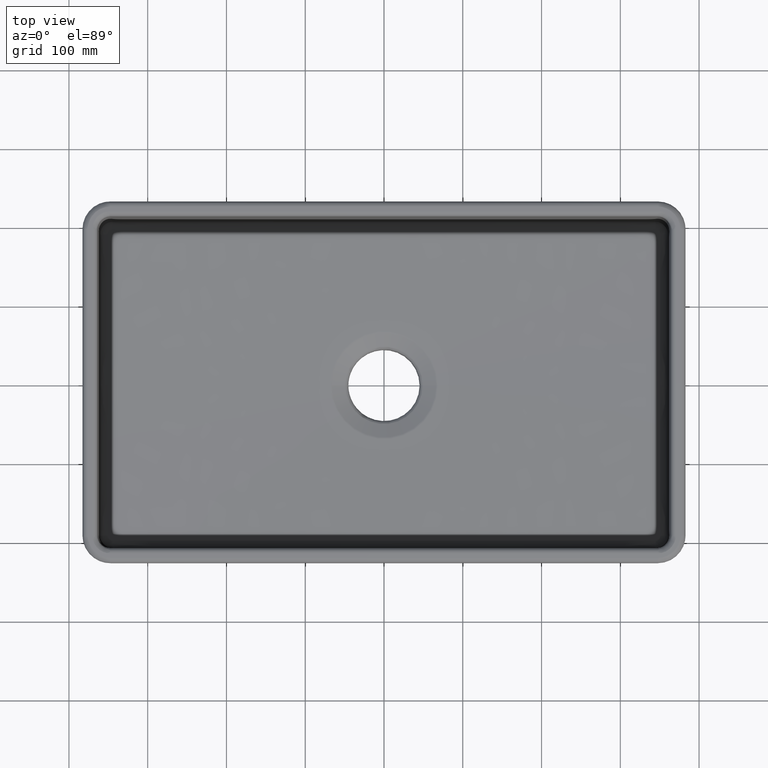
[diagram: clean part render]
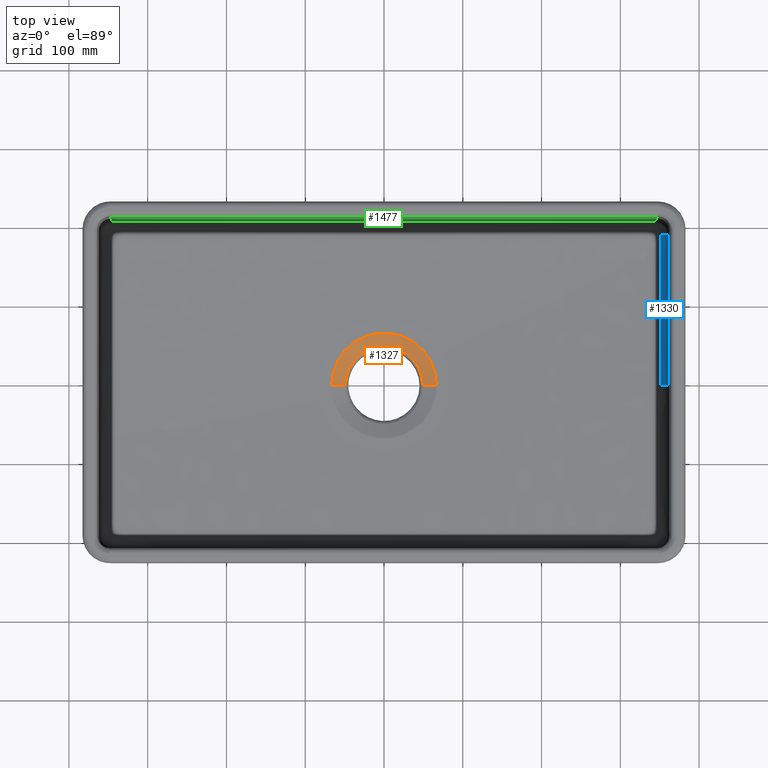
[diagram: same view with three faces highlighted in distinct colors, each labeled with its STEP entity id]
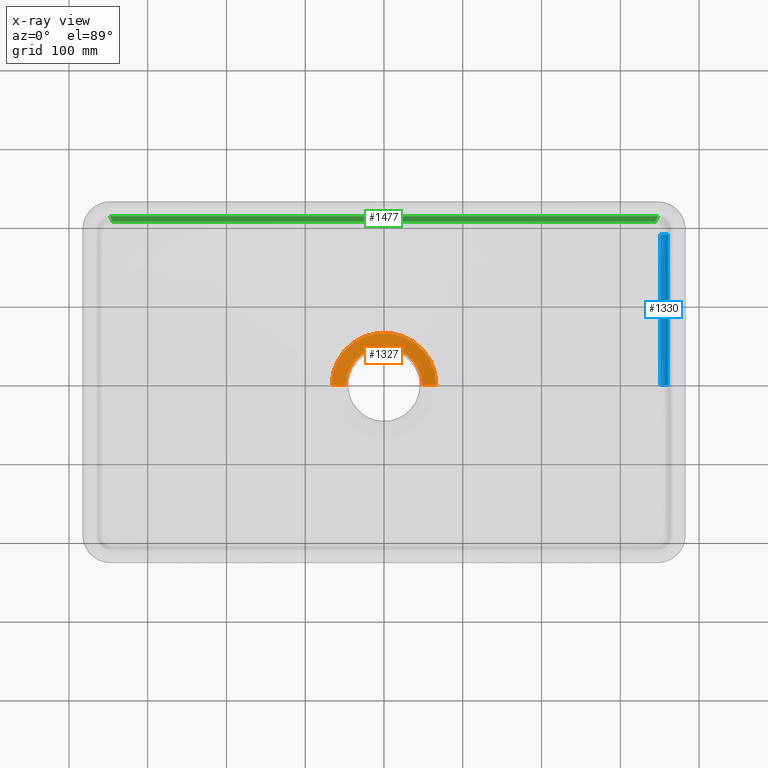
[diagram: x-ray of the same camera — body ghosted, the three highlighted faces saturated]
A machine part, top view with three faces highlighted in distinct colors.
The next image is the same camera in x-ray (body ghosted, the three faces saturated) — at least one of them is partly hidden behind the body in this view.
Their STEP definitions:

[orange] entity #1327 — the highlighted face is a freeform B-spline surface patch.
#114=(
BOUNDED_SURFACE()
B_SPLINE_SURFACE(1,3,((#9401,#9402,#9403,#9404,#9405,#9406,#9407),(#9408,
#9409,#9410,#9411,#9412,#9413,#9414)),.UNSPECIFIED.,.F.,.T.,.F.)
B_SPLINE_SURFACE_WITH_KNOTS((2,2),(1,3,3,3,1),(0.,1.),(-0.5,0.,0.5,1.,1.5),
 .UNSPECIFIED.)
GEOMETRIC_REPRESENTATION_ITEM()
RATIONAL_B_SPLINE_SURFACE(((1.,0.333333333333333,0.333333333333333,1.,0.333333333333333,
0.333333333333333,1.),(1.,0.333333333333333,0.333333333333333,1.,0.333333333333333,
0.333333333333333,1.)))
REPRESENTATION_ITEM('')
SURFACE()
);
#395=(
BOUNDED_CURVE()
B_SPLINE_CURVE(1,(#9399,#9400),.UNSPECIFIED.,.F.,.F.)
B_SPLINE_CURVE_WITH_KNOTS((2,2),(0.,1.),.UNSPECIFIED.)
CURVE()
GEOMETRIC_REPRESENTATION_ITEM()
RATIONAL_B_SPLINE_CURVE((0.999999999999999,0.999999999999999))
REPRESENTATION_ITEM('')
);
#1079=CIRCLE('',#5839,49.1144117555744);
#1080=CIRCLE('',#5841,66.3848940076697);
#1327=ADVANCED_FACE('',(#1699),#114,.F.);
#1699=FACE_OUTER_BOUND('',#2045,.T.);
#2045=EDGE_LOOP('',(#2620,#2621,#2622,#2623));
#2620=ORIENTED_EDGE('',*,*,#4971,.F.);
#2621=ORIENTED_EDGE('',*,*,#4972,.T.);
#2622=ORIENTED_EDGE('',*,*,#4973,.F.);
#2623=ORIENTED_EDGE('',*,*,#4969,.T.);
#4370=VERTEX_POINT('',#9387);
#4371=VERTEX_POINT('',#9388);
#4372=VERTEX_POINT('',#9396);
#4373=VERTEX_POINT('',#9398);
#4969=EDGE_CURVE('',#4370,#4371,#1079,.T.);
#4971=EDGE_CURVE('',#4372,#4371,#5704,.T.);
#4972=EDGE_CURVE('',#4372,#4373,#1080,.T.);
#4973=EDGE_CURVE('',#4370,#4373,#395,.T.);
#5704=LINE('',#9395,#5769);
#5769=VECTOR('',#6238,1.);
#5839=AXIS2_PLACEMENT_3D('',#9389,#6234,#6235);
#5841=AXIS2_PLACEMENT_3D('',#9397,#6239,#6240);
#6234=DIRECTION('',(-1.52260824597301E-031,3.49010973577968E-016,-1.));
#6235=DIRECTION('',(0.,1.,3.53200499399225E-016));
#6238=DIRECTION('',(-0.933580426497201,7.50914907258306E-016,-0.358367949545301));
#6239=DIRECTION('',(1.52260824597301E-031,-3.49010973577968E-016,1.));
#6240=DIRECTION('',(0.,1.,3.49010990959669E-016));
#9387=CARTESIAN_POINT('',(-49.1144117555745,0.,-6.62955299999997));
#9388=CARTESIAN_POINT('',(49.1144117555744,-2.47829537048856E-014,-6.62955299999997));
#9389=CARTESIAN_POINT('',(0.,0.,-6.629553));
#9395=CARTESIAN_POINT('',(62.5856368540658,1.39475254349894E-014,-1.45843417682265));
#9396=CARTESIAN_POINT('',(66.3848940076696,3.03858167864314E-061,-3.59957031317035E-005));
#9397=CARTESIAN_POINT('',(0.,0.,-3.59957031316905E-005));
#9398=CARTESIAN_POINT('',(-66.3848940076696,-3.03858167864314E-061,-3.59957031317035E-005));
#9399=CARTESIAN_POINT('',(-49.1144117555745,-1.88394069126818E-014,-6.62955299999997));
#9400=CARTESIAN_POINT('',(-66.3848940076696,-4.8069994542083E-014,-3.59957031698805E-005));
#9401=CARTESIAN_POINT('',(79.9259994148784,0.,5.19790736474793));
#9402=CARTESIAN_POINT('',(79.9259994148784,159.851998829757,5.19790736474796));
#9403=CARTESIAN_POINT('',(-79.9259994148784,159.851998829757,5.19790736474796));
#9404=CARTESIAN_POINT('',(-79.9259994148784,0.,5.19790736474793));
#9405=CARTESIAN_POINT('',(-79.9259994148784,-159.851998829757,5.19790736474796));
#9406=CARTESIAN_POINT('',(79.9259994148783,-159.851998829757,5.19790736474796));
#9407=CARTESIAN_POINT('',(79.9259994148784,0.,5.19790736474793));
#9408=CARTESIAN_POINT('',(45.2452742932533,2.78950508699788E-014,-8.11477571839323));
#9409=CARTESIAN_POINT('',(45.2452742932533,90.4905485865067,-8.11477571839321));
#9410=CARTESIAN_POINT('',(-45.2452742932533,90.4905485865068,-8.11477571839321));
#9411=CARTESIAN_POINT('',(-45.2452742932534,2.78950508699788E-014,-8.11477571839323));
#9412=CARTESIAN_POINT('',(-45.2452742932533,-90.4905485865068,-8.11477571839321));
#9413=CARTESIAN_POINT('',(45.2452742932533,-90.4905485865068,-8.11477571839321));
#9414=CARTESIAN_POINT('',(45.2452742932533,2.78950508699788E-014,-8.11477571839323));

[blue] entity #1330 — the highlighted face is a freeform B-spline surface patch.
#116=(
BOUNDED_SURFACE()
B_SPLINE_SURFACE(3,2,((#9493,#9494,#9495),(#9496,#9497,#9498),(#9499,#9500,
#9501),(#9502,#9503,#9504)),.UNSPECIFIED.,.F.,.F.,.F.)
B_SPLINE_SURFACE_WITH_KNOTS((4,4),(3,3),(0.,1.),(0.,1.),.UNSPECIFIED.)
GEOMETRIC_REPRESENTATION_ITEM()
RATIONAL_B_SPLINE_SURFACE(((1.,0.723904266413247,1.),(1.,0.723904266413247,
1.),(1.,0.725375392977469,1.),(1.,0.725375392977469,1.)))
REPRESENTATION_ITEM('')
SURFACE()
);
#545=B_SPLINE_CURVE_WITH_KNOTS('',3,(#9437,#9438,#9439,#9440),
 .UNSPECIFIED.,.F.,.F.,(4,4),(0.,1.),.UNSPECIFIED.);
#550=B_SPLINE_CURVE_WITH_KNOTS('',3,(#9487,#9488,#9489,#9490),
 .UNSPECIFIED.,.F.,.F.,(4,4),(0.,1.),.UNSPECIFIED.);
#1084=CIRCLE('',#5846,10.0502512562814);
#1085=CIRCLE('',#5847,10.0502512562814);
#1330=ADVANCED_FACE('',(#1701),#116,.T.);
#1701=FACE_OUTER_BOUND('',#2049,.T.);
#2049=EDGE_LOOP('',(#2636,#2637,#2638,#2639));
#2636=ORIENTED_EDGE('',*,*,#4984,.F.);
#2637=ORIENTED_EDGE('',*,*,#4985,.F.);
#2638=ORIENTED_EDGE('',*,*,#4986,.T.);
#2639=ORIENTED_EDGE('',*,*,#4979,.F.);
#4377=VERTEX_POINT('',#9436);
#4378=VERTEX_POINT('',#9441);
#4382=VERTEX_POINT('',#9486);
#4383=VERTEX_POINT('',#9491);
#4979=EDGE_CURVE('',#4377,#4378,#545,.T.);
#4984=EDGE_CURVE('',#4382,#4377,#1084,.T.);
#4985=EDGE_CURVE('',#4383,#4382,#550,.T.);
#4986=EDGE_CURVE('',#4383,#4378,#1085,.T.);
#5846=AXIS2_PLACEMENT_3D('',#9485,#6249,#6250);
#5847=AXIS2_PLACEMENT_3D('',#9492,#6251,#6252);
#6249=DIRECTION('',(0.,1.,0.));
#6250=DIRECTION('',(0.,0.,-1.));
#6251=DIRECTION('',(0.000292094724097546,0.999859932554186,0.0167340955360933));
#6252=DIRECTION('',(0.,0.0167340962499641,-0.999859975207877));
#9436=CARTESIAN_POINT('',(350.697054243399,6.23862016658794E-014,10.3161714649818));
#9437=CARTESIAN_POINT('',(350.697054243399,9.57759997405754E-014,10.3161714649818));
#9438=CARTESIAN_POINT('',(350.697054243399,63.7856072246808,10.3161714649818));
#9439=CARTESIAN_POINT('',(350.688867604402,127.568278502609,10.9535075145952));
#9440=CARTESIAN_POINT('',(350.68393670735,191.348971973442,12.0202468780342));
#9441=CARTESIAN_POINT('',(350.68393670735,191.348971973443,12.0202468780342));
#9485=CARTESIAN_POINT('',(350.34627570878,-6.25218007631856E-014,20.3602993382238));
#9486=CARTESIAN_POINT('',(360.394996263115,0.,20.1848982685024));
#9487=CARTESIAN_POINT('',(360.424741014263,191.180958981598,21.8889739204751));
#9488=CARTESIAN_POINT('',(360.406124090149,127.453972654398,20.8224110523115));
#9489=CARTESIAN_POINT('',(360.394996263115,63.7269863271992,20.1848982685024));
#9490=CARTESIAN_POINT('',(360.394996263115,9.62998438875617E-014,20.1848982685024));
#9491=CARTESIAN_POINT('',(360.424741014263,191.180958981598,21.888973920475));
#9492=CARTESIAN_POINT('',(350.376020459927,191.180958981598,22.0643749901966));
#9493=CARTESIAN_POINT('',(350.68393670735,191.348971973443,12.0202468780342));
#9494=CARTESIAN_POINT('',(360.25760244247,191.341265284196,12.313611555427));
#9495=CARTESIAN_POINT('',(360.424741014263,191.180958981597,21.8889739204751));
#9496=CARTESIAN_POINT('',(350.688866754037,127.579178385765,10.9536898161467));
#9497=CARTESIAN_POINT('',(360.23936601652,127.573052274405,11.268847818242));
#9498=CARTESIAN_POINT('',(360.40612399069,127.453632243738,20.8224053542756));
#9499=CARTESIAN_POINT('',(350.697054254012,63.7916791748301,10.3161714653525));
#9500=CARTESIAN_POINT('',(360.228547357902,63.7884292153832,10.6490468800324));
#9501=CARTESIAN_POINT('',(360.394996263122,63.7272419934137,20.1848982688957));
#9502=CARTESIAN_POINT('',(350.697054243399,-6.15075227691769E-014,10.3161714649818));
#9503=CARTESIAN_POINT('',(360.228547357902,-6.1516992864506E-014,10.649046875334));
#9504=CARTESIAN_POINT('',(360.394996263115,-6.16979307795856E-014,20.1848982685024));

[green] entity #1477 — the highlighted planar face has unit normal (0, 0.9998, -0.0175).
#729=B_SPLINE_CURVE_WITH_KNOTS('',3,(#14875,#14876,#14877,#14878,#14879,
#14880,#14881,#14882,#14883,#14884),.UNSPECIFIED.,.F.,.F.,(4,2,2,2,4),(0.,
0.25,0.5,0.75,1.),.UNSPECIFIED.);
#1477=ADVANCED_FACE('',(#1844),#1666,.F.);
#1666=PLANE('',#5983);
#1844=FACE_OUTER_BOUND('',#2200,.T.);
#2200=EDGE_LOOP('',(#3336,#3337,#3338,#3339));
#3336=ORIENTED_EDGE('',*,*,#5293,.T.);
#3337=ORIENTED_EDGE('',*,*,#5294,.T.);
#3338=ORIENTED_EDGE('',*,*,#5291,.T.);
#3339=ORIENTED_EDGE('',*,*,#5288,.T.);
#4543=VERTEX_POINT('',#14830);
#4544=VERTEX_POINT('',#14885);
#4545=VERTEX_POINT('',#14962);
#4546=VERTEX_POINT('',#14966);
#5288=EDGE_CURVE('',#4544,#4543,#729,.T.);
#5291=EDGE_CURVE('',#4545,#4544,#5720,.T.);
#5293=EDGE_CURVE('',#4543,#4546,#5721,.T.);
#5294=EDGE_CURVE('',#4546,#4545,#5722,.T.);
#5720=LINE('',#14961,#5785);
#5721=LINE('',#14965,#5786);
#5722=LINE('',#14967,#5787);
#5785=VECTOR('',#6534,1.);
#5786=VECTOR('',#6539,1.);
#5787=VECTOR('',#6540,1.);
#5983=AXIS2_PLACEMENT_3D('',#14968,#6541,#6542);
#6534=DIRECTION('',(0.0174497491606827,-0.0174497491606827,-0.999695459881888));
#6539=DIRECTION('',(0.0174497491606827,0.0174497491606827,0.999695459881888));
#6540=DIRECTION('',(-1.,0.,0.));
#6541=DIRECTION('',(0.,0.999847695156391,-0.0174524064372835));
#6542=DIRECTION('',(0.,-0.0174524064372835,-0.999847695156391));
#14830=CARTESIAN_POINT('',(344.345372473083,207.257496214291,21.8078711431788));
#14875=CARTESIAN_POINT('',(-344.345372473083,207.257496214291,21.8078711431788));
#14876=CARTESIAN_POINT('',(-286.965728801055,207.227134540082,20.0684519926834));
#14877=CARTESIAN_POINT('',(-229.583010801299,207.198180724077,18.4096889846989));
#14878=CARTESIAN_POINT('',(-114.802290981517,207.152125360166,15.7711789533703));
#14879=CARTESIAN_POINT('',(-57.400960431512,207.135733618201,14.8320966851156));
#14880=CARTESIAN_POINT('',(57.4129115870106,207.135735741949,14.8322183545812));
#14881=CARTESIAN_POINT('',(114.807598413761,207.152127141846,15.77128102573));
#14882=CARTESIAN_POINT('',(229.586885738419,207.198182626819,18.4097979927083));
#14883=CARTESIAN_POINT('',(286.967238565812,207.227135338953,20.0684977600247));
#14884=CARTESIAN_POINT('',(344.345372473083,207.257496214291,21.8078711431788));
#14885=CARTESIAN_POINT('',(-344.345372473083,207.257496214291,21.8078711431788));
#14961=CARTESIAN_POINT('',(-347.524476948219,210.436600689427,203.93864454393));
#14962=CARTESIAN_POINT('',(-347.627160363056,210.539284104265,209.821373440061));
#14965=CARTESIAN_POINT('',(347.6177530223,210.529876763509,209.282427249117));
#14966=CARTESIAN_POINT('',(347.627160363056,210.539284104265,209.821373440061));
#14967=CARTESIAN_POINT('',(363.819095477387,210.539284104265,209.821373440061));
#14968=CARTESIAN_POINT('',(363.819095477387,210.653266331658,216.351410874037));